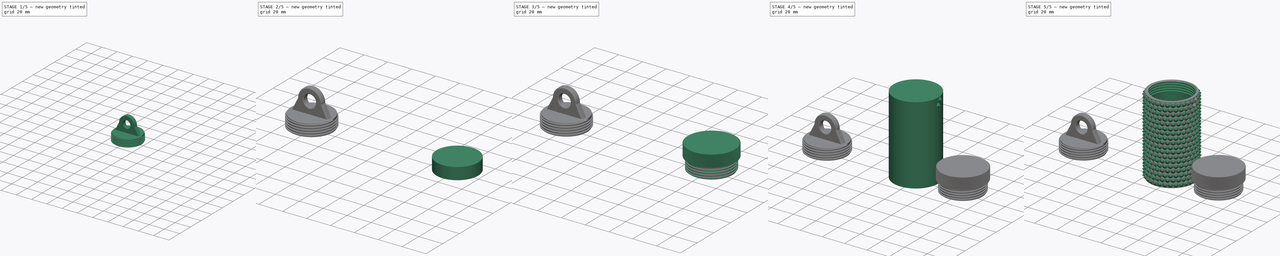
[diagram: build sequence overview — one tinted view per stage of 5, left to right]
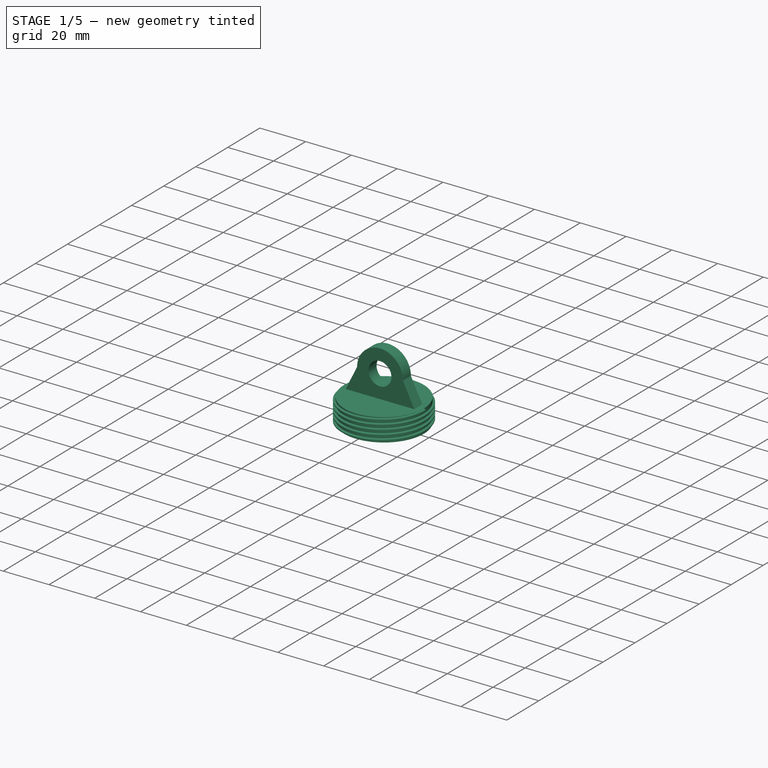
[diagram: stage 1 of 5 — iso view after this stage's code; geometry added in this stage tinted green]
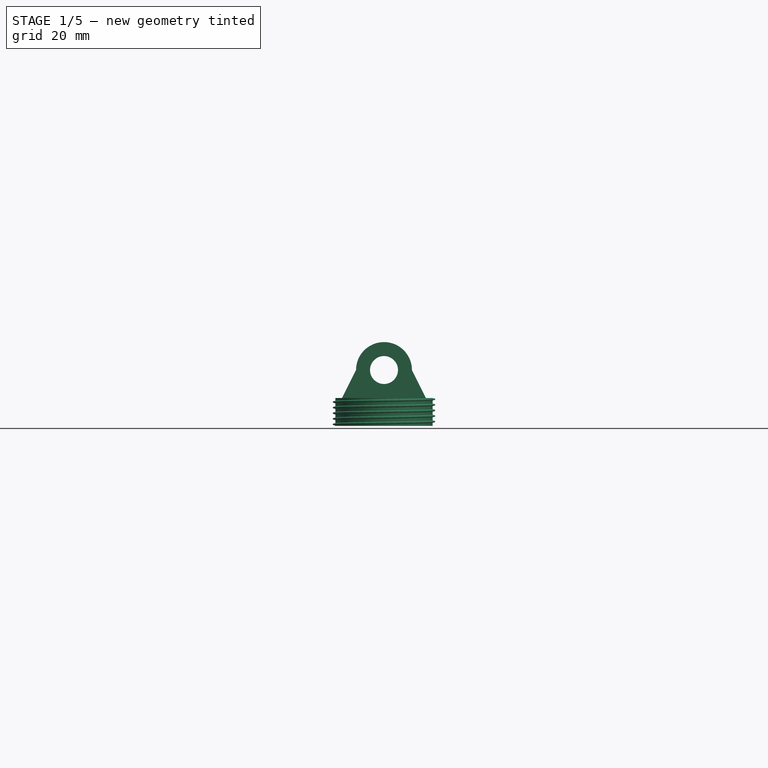
[diagram: stage 1 of 5 — front view after this stage's code; geometry added in this stage tinted green]
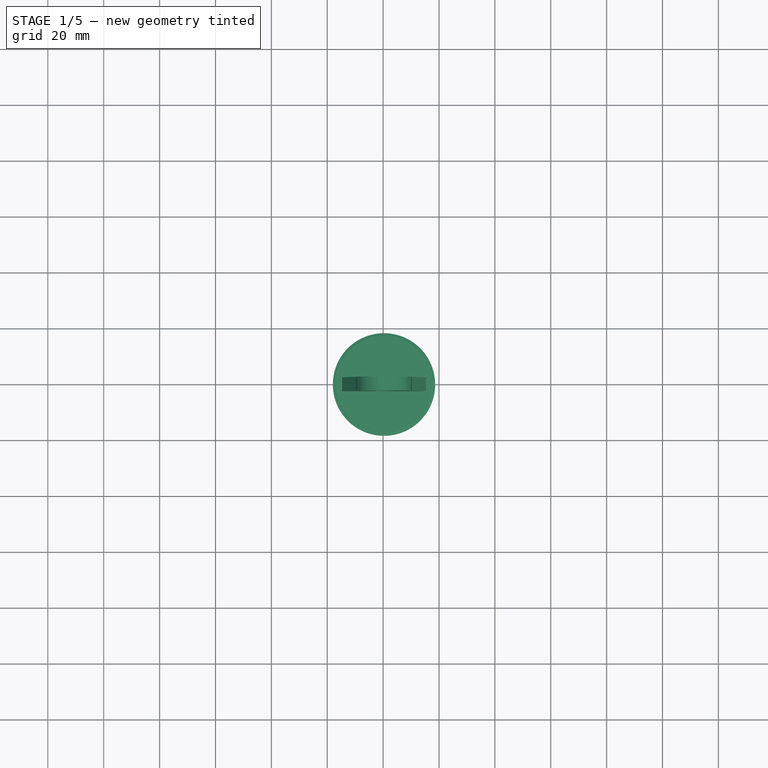
[diagram: stage 1 of 5 — top view after this stage's code; geometry added in this stage tinted green]
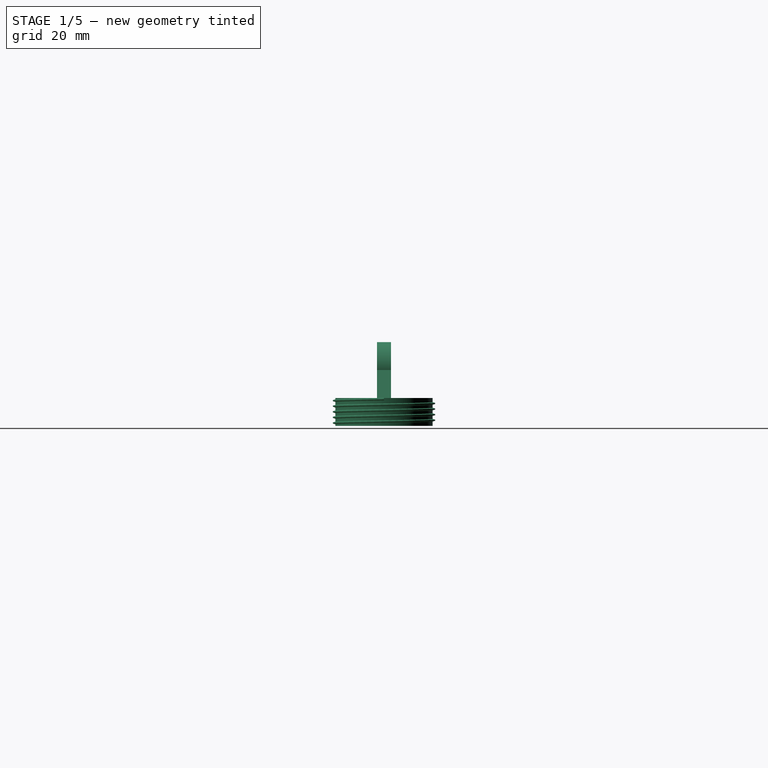
[diagram: stage 1 of 5 — right view after this stage's code; geometry added in this stage tinted green]
FCSTD DOCUMENT  (FreeCAD 1.0R)
Label: spikey roller
License: All rights reserved
LicenseURL: http://en.wikipedia.org/wiki/All_rights_reserved
objects: Sketcher::SketchObject×13, App::VarSet×5, PartDesign::Pad×5, PartDesign::Plane×5, PartDesign::Body×3, PartDesign::Revolution×2, PartDesign::PolarPattern×2, PartDesign::MultiTransform×2, PartDesign::Pocket×2, PartDesign::AdditiveHelix×2, PartDesign::Fillet×2, PartDesign::LinearPattern×1, PartDesign::SubtractiveHelix×1
note: 86 computed .brp shape members not serialized (recipe doc carries the construction recipe); baked Part::Feature solids carry a one-line shape summary decoded from their .brp

FEATURE [PartDesign::Body] Body001  label="lid variant 1"
  AllowCompound = false
  Group = -> [Sketch006,Pad001,DatumPlane003,Sketch007,AdditiveHelix,Sketch008,VarSet003,Pad002,Sketch009,Pocket001,MultiTransform001,PolarPattern001]
  Origin = -> Origin001
  Placement = pos=(20,0,0) rot=(0,0,1;0rad)
  Tip = -> MultiTransform001
FEATURE [Sketcher::SketchObject] Sketch010
  ArcFitTolerance = 1e-06
  AttachmentSupport = -> [XY_Plane002]
  FullyConstrained = false
  MakeInternals = false
  MapMode = 5
  expr: Constraints[1] = <<lid>>.bottom_width
  sketch-geometry (1):
    g0: Circle CenterX=-79.6834 CenterY=0 CenterZ=0 NormalX=0 NormalY=0 NormalZ=1 AngleXU=0 Radius=17.4
  constraints (2):
    c: PointOnObject(g0,g-1)
    c: Diameter(g0) = 34.8
FEATURE [PartDesign::Pad] Pad003
  Direction = (0,0,1)
  Length = 10
  Length2 = 10
  Profile = -> Sketch010
  ReferenceAxis = -> Sketch010 [N_Axis]
  Suppressed = false
  Type = 0
  expr: Length = <<thread>>.thread_length
FEATURE [PartDesign::Plane] DatumPlane004
  AttachmentOffset = pos=(0,0,0) rot=(1,0,0;1.5708rad)
  AttachmentSupport = -> [Pad003]
  Length = 139.421
  MapMode = 5
  Placement = pos=(0,0,10) rot=(1,0,0;1.5708rad)
  ResizeMode = 0
  Width = 71.365
FEATURE [Sketcher::SketchObject] Sketch011
  ArcFitTolerance = 1e-06
  AttachmentSupport = -> [DatumPlane004]
  ExternalGeometry = -> [Pad003]
  FullyConstrained = true
  MakeInternals = false
  MapMode = 5
  Placement = pos=(0,0,10) rot=(1,0,0;1.5708rad)
  expr: Constraints[10] = <<thread>>.depth - <<tolerance>>.thread_tolerance
  expr: Constraints[7] = <<thread>>.start_size - <<tolerance>>.thread_tolerance
  expr: Constraints[8] = <<thread>>.end_size - <<tolerance>>.thread_tolerance
  expr: Constraints[9] = (<<thread>>.start_size - <<thread>>.end_size) / 2
  sketch-geometry (4):
    g0: LineSegment StartX=-62.2834 StartY=0 StartZ=0 EndX=-62.2834 EndY=-0.9 EndZ=0
    g1: LineSegment StartX=-62.2834 StartY=-0.9 StartZ=0 EndX=-61.3834 EndY=-0.65 EndZ=0
    g2: LineSegment StartX=-61.3834 StartY=-0.65 StartZ=0 EndX=-61.3834 EndY=-0.25 EndZ=0
    g3: LineSegment StartX=-61.3834 StartY=-0.25 StartZ=0 EndX=-62.2834 EndY=0 EndZ=0
  constraints (11):
    c: Coincident(g0,g-4)
    c: PointOnObject(g0,g-3)
    c: Coincident(g1,g0)
    c: Coincident(g2,g1)
    c: Coincident(g3,g2)
    c: Coincident(g3,g0)
    c: Parallel(g2,g0)
    c: DistanceY(g0,g0) = 0.9
    c: DistanceY(g2,g2) = 0.4
    c: DistanceY(g2,g0) = 0.25
    c: DistanceX(g0,g2) = 0.9
FEATURE [PartDesign::AdditiveHelix] AdditiveHelix001
  Angle = 0
  Axis = (0,0,1)
  Base = (-79.6834,0,10)
  BaseFeature = -> Pad003
  Growth = 0
  HasBeenEdited = true
  Height = 9
  LeftHanded = false
  Mode = 0
  Outside = false
  Pitch = 2
  Profile = -> Sketch011
  ReferenceAxis = -> Pad003 [Edge3]
  Reversed = true
  Suppressed = false
  Tolerance = 0.1
  Turns = 4.5
  expr: Height = <<thread>>.thread_length - <<thread>>.start_size
  expr: Pitch = <<thread>>.pitch
FEATURE [Sketcher::SketchObject] Sketch012
  ArcFitTolerance = 1e-06
  AttachmentSupport = -> [DatumPlane004]
  ExternalGeometry = -> [AdditiveHelix001]
  FullyConstrained = true
  MakeInternals = false
  MapMode = 5
  Placement = pos=(0,0,10) rot=(1,0,0;1.5708rad)
  expr: Constraints[11] = <<hole>>.hole_base_size
  expr: Constraints[12] = <<hole>>.hole_base_size / 2
  expr: Constraints[13] = (<<lid>>.bottom_width - <<hole>>.hole_base_size) / 2
  expr: Constraints[3] = <<hole>>.hole_size
  expr: Constraints[4] = <<hole>>.thickness_around_hole
  expr: Constraints[6] = <<hole>>.hole_height
  expr: Constraints[7] = <<hole>>.hole_height
  sketch-geometry (5):
    g0: ArcOfCircle CenterX=-79.6834 CenterY=10 CenterZ=0 NormalX=0 NormalY=0 NormalZ=1 AngleXU=0 Radius=10 StartAngle=6.28319 EndAngle=9.42478
    g1: LineSegment StartX=-89.6834 StartY=10 StartZ=0 EndX=-94.6834 EndY=0 EndZ=0
    g2: Circle CenterX=-79.6834 CenterY=10 CenterZ=0 NormalX=0 NormalY=0 NormalZ=1 AngleXU=0 Radius=5
    g3: LineSegment StartX=-69.6834 StartY=10 StartZ=0 EndX=-64.6834 EndY=0 EndZ=0
    g4: LineSegment StartX=-94.6834 StartY=0 StartZ=0 EndX=-64.6834 EndY=0 EndZ=0
  constraints (15):
    c: Angle(g0) = 3.14159
    c: Coincident(g1,g0)
    c: Coincident(g2,g0)
    c: Diameter(g2) = 10
    c: Distance(g2,g0) = 5
    c: Coincident(g3,g0)
    c: DistanceY(g-3,g0) = 10
    c: DistanceY(g-3,g0) = 10
    c: Coincident(g4,g1)
    c: Coincident(g4,g3)
    c: Horizontal(g4)
    c: DistanceX(g4,g4) = 30
    c: DistanceX(g1,g0) = 15
    c: DistanceX(g-3,g1) = 2.4
    c: PointOnObject(g3,g-3)
FEATURE [App::VarSet] VarSet004  label="hole"
  hole_base_size = 30
  hole_fillet = 1
  hole_height = 10
  hole_size = 10
  hole_tab_fillet = 1
  hole_tab_thickness = 5
  thickness_around_hole = 5
FEATURE [PartDesign::Pad] Pad004
  BaseFeature = -> AdditiveHelix001
  Direction = (0,-1,2e-16)
  Length = 2.5
  Length2 = 2.5
  Profile = -> Sketch012
  ReferenceAxis = -> Sketch012 [N_Axis]
  Suppressed = false
  Type = 4
  expr: Length = <<hole>>.hole_tab_thickness / 2
  expr: Length2 = <<hole>>.hole_tab_thickness / 2
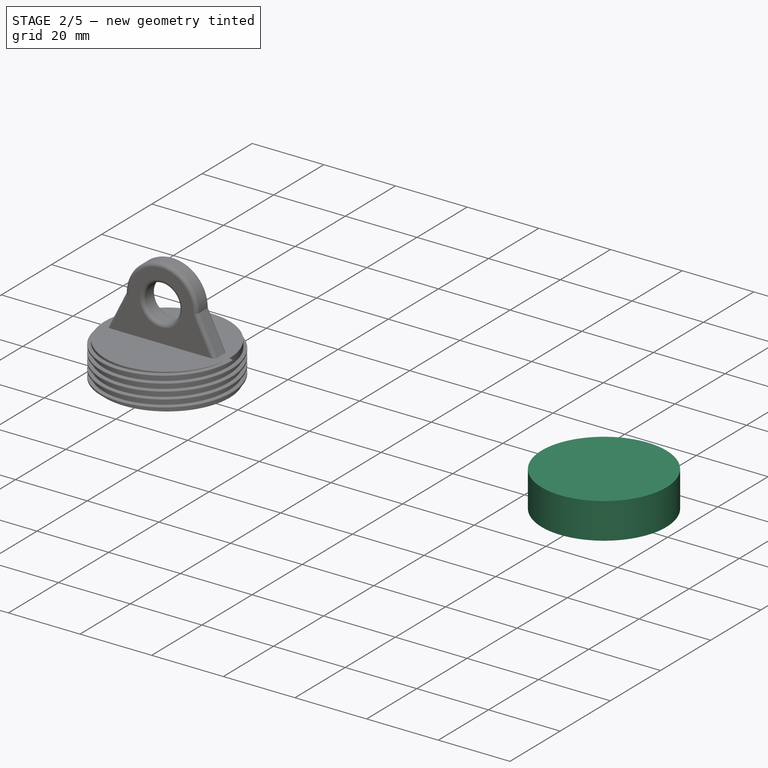
[diagram: stage 2 of 5 — iso view after this stage's code; geometry added in this stage tinted green]
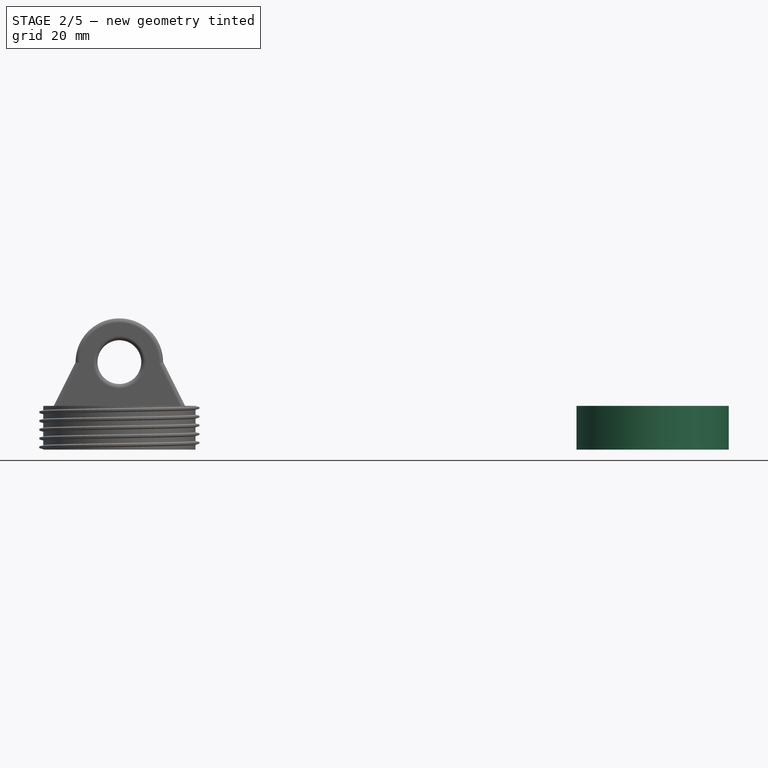
[diagram: stage 2 of 5 — front view after this stage's code; geometry added in this stage tinted green]
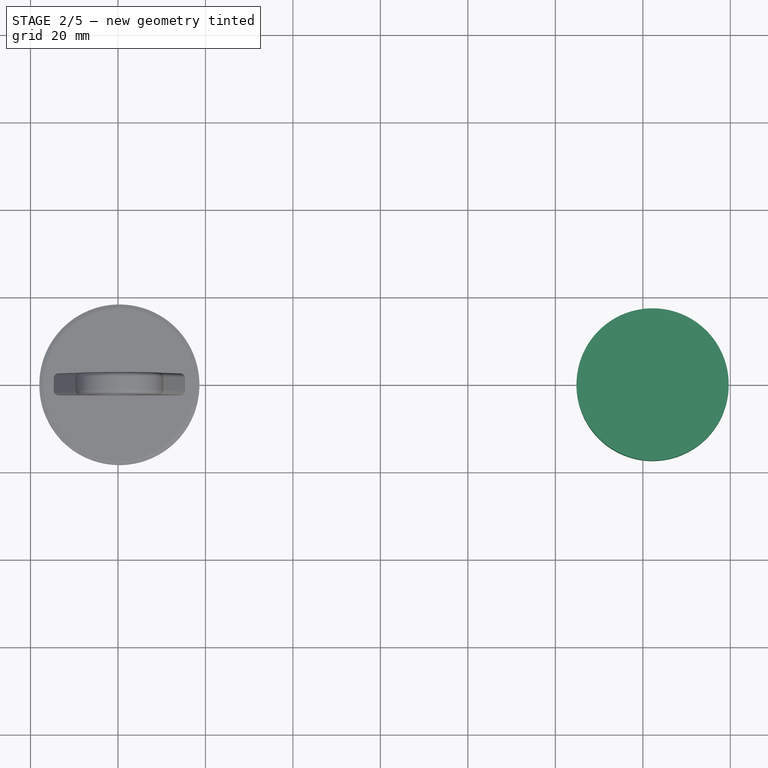
[diagram: stage 2 of 5 — top view after this stage's code; geometry added in this stage tinted green]
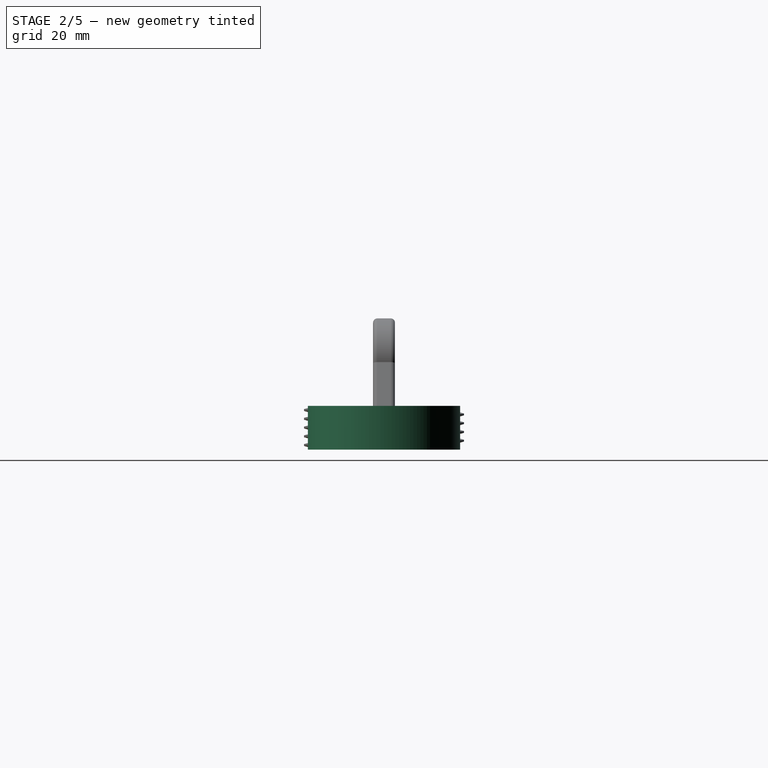
[diagram: stage 2 of 5 — right view after this stage's code; geometry added in this stage tinted green]
FEATURE [PartDesign::Body] Body
  AllowCompound = false
  Group = -> [VarSet,Sketch,Pad,DatumPlane,Sketch001,Revolution,DatumPlane001,Sketch002,Revolution001,MultiTransform,PolarPattern,LinearPattern,Sketch003,Sketch004,Pocket,DatumPlane002,Sketch005,SubtractiveHelix,VarSet001]
  Origin = -> Origin
  Tip = -> SubtractiveHelix
FEATURE [Sketcher::SketchObject] Sketch006
  ArcFitTolerance = 1e-06
  AttachmentSupport = -> [XY_Plane001]
  FullyConstrained = false
  MakeInternals = false
  MapMode = 5
  expr: Constraints[1] = <<lid>>.bottom_width
  sketch-geometry (1):
    g0: Circle CenterX=42.2275 CenterY=0 CenterZ=0 NormalX=0 NormalY=0 NormalZ=1 AngleXU=0 Radius=17.4
  constraints (2):
    c: PointOnObject(g0,g-1)
    c: Diameter(g0) = 34.8
FEATURE [App::VarSet] VarSet002  label="tolerance"
  thread_tolerance = 0.1
  tolerance = 0.2
FEATURE [PartDesign::Pad] Pad001
  Direction = (0,0,1)
  Length = 10
  Length2 = 10
  Profile = -> Sketch006 [Edge1]
  ReferenceAxis = -> Sketch006 [N_Axis]
  Suppressed = false
  Type = 0
  expr: Length = <<lid>>.bottom_depth
FEATURE [PartDesign::Fillet] Fillet
  Base = -> Pad004 [Edge57,Edge61]
  BaseFeature = -> Pad004
  Radius = 1
  Refine = true
  SupportTransform = false
  Suppressed = false
  UseAllEdges = false
  expr: Radius = <<hole>>.hole_fillet
FEATURE [PartDesign::Fillet] Fillet001
  Base = -> Fillet [Edge5,Edge2,Edge3,Edge10,Edge16,Edge12]
  BaseFeature = -> Fillet
  Radius = 1
  Refine = true
  SupportTransform = false
  Suppressed = false
  UseAllEdges = false
  expr: Radius = <<hole>>.hole_tab_fillet
FEATURE [PartDesign::Body] Body002  label="lid variant 2"
  AllowCompound = false
  Group = -> [Sketch010,Pad003,DatumPlane004,Sketch011,AdditiveHelix001,Sketch012,VarSet004,Pad004,Fillet,Fillet001]
  Origin = -> Origin002
  Placement = pos=(23,0,0) rot=(0,0,1;0rad)
  Tip = -> Fillet001
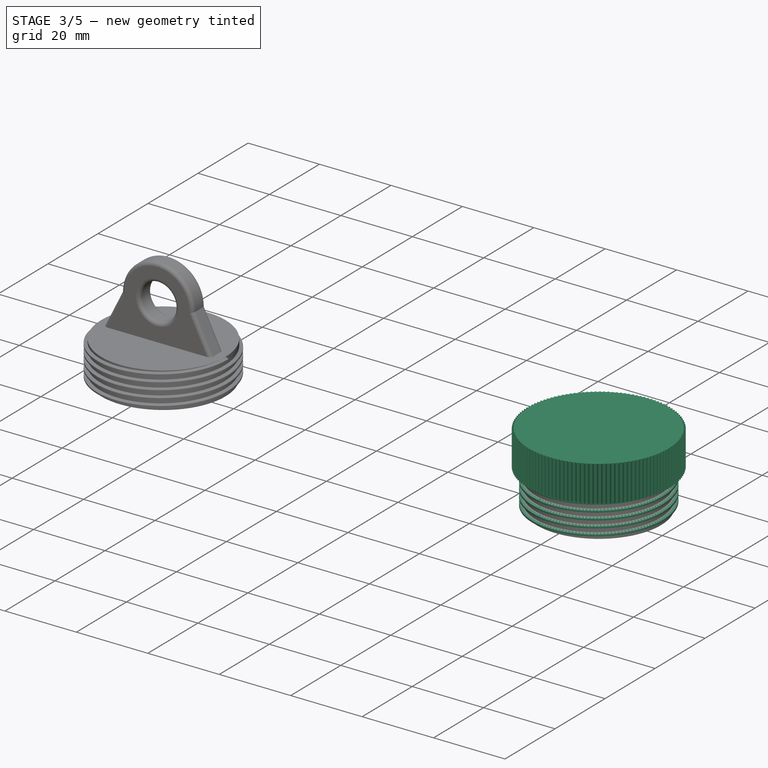
[diagram: stage 3 of 5 — iso view after this stage's code; geometry added in this stage tinted green]
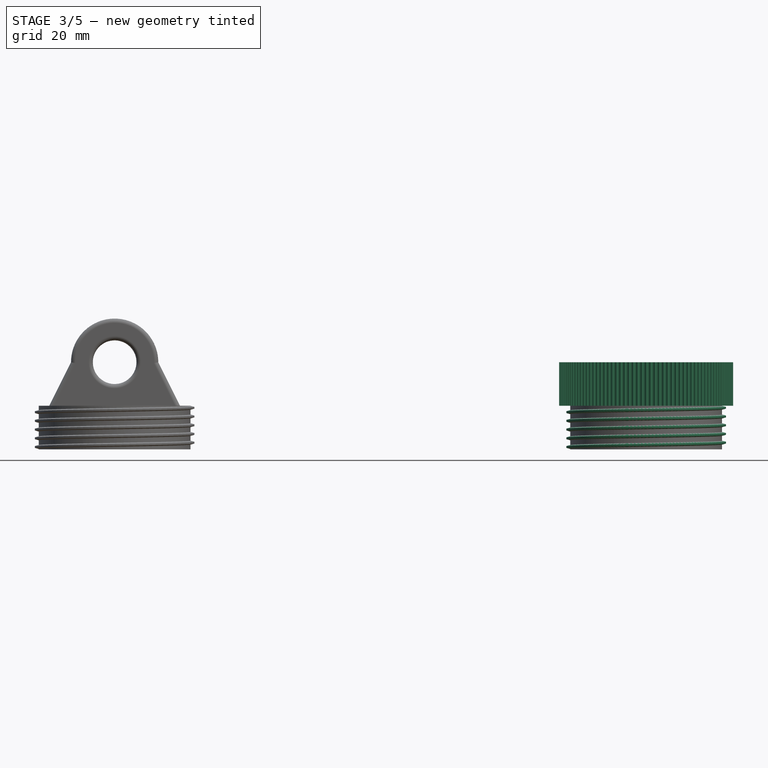
[diagram: stage 3 of 5 — front view after this stage's code; geometry added in this stage tinted green]
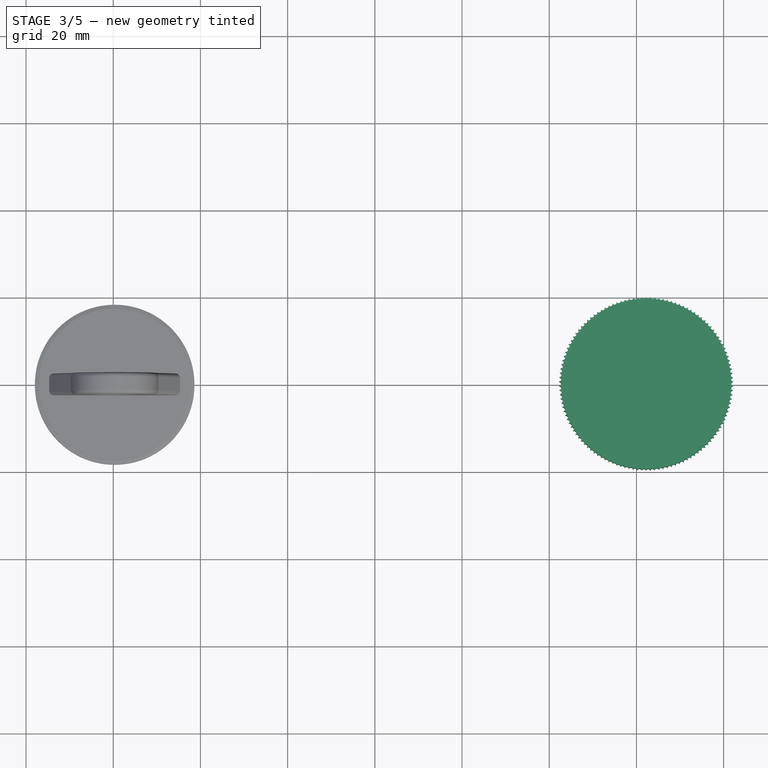
[diagram: stage 3 of 5 — top view after this stage's code; geometry added in this stage tinted green]
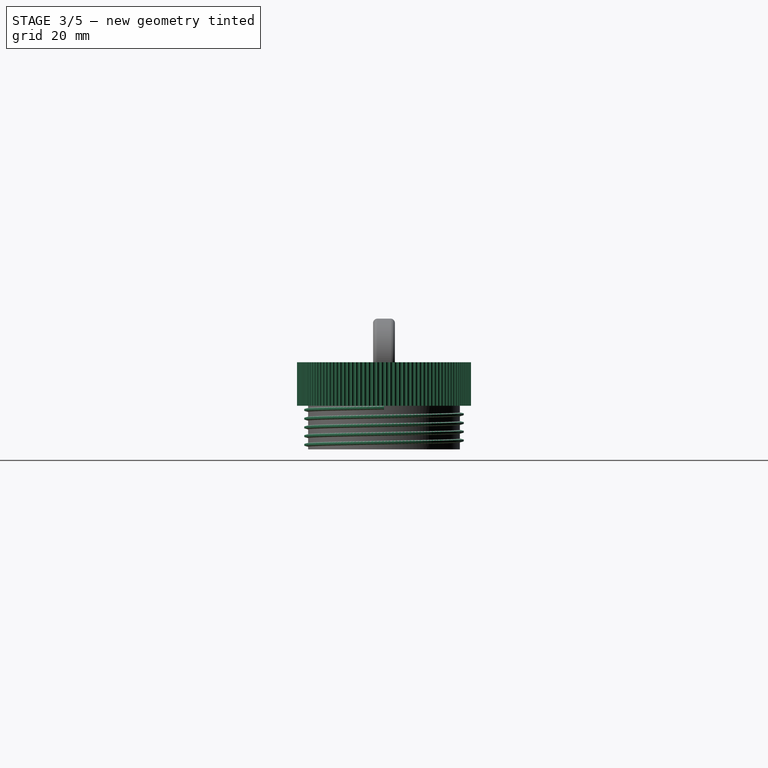
[diagram: stage 3 of 5 — right view after this stage's code; geometry added in this stage tinted green]
FEATURE [PartDesign::Plane] DatumPlane003
  AttachmentOffset = pos=(0,0,0) rot=(1,0,0;1.5708rad)
  AttachmentSupport = -> [Pad001]
  Length = 100.383
  MapMode = 5
  Placement = pos=(0,0,10) rot=(1,0,0;1.5708rad)
  ResizeMode = 0
  Width = 63.2044
FEATURE [Sketcher::SketchObject] Sketch007
  ArcFitTolerance = 1e-06
  AttachmentSupport = -> [DatumPlane003]
  ExternalGeometry = -> [Pad001]
  FullyConstrained = true
  MakeInternals = false
  MapMode = 5
  Placement = pos=(0,0,10) rot=(1,0,0;1.5708rad)
  expr: Constraints[10] = (<<thread>>.start_size - <<thread>>.end_size) / 2
  expr: Constraints[6] = <<thread>>.depth - <<tolerance>>.thread_tolerance
  expr: Constraints[8] = <<thread>>.end_size - <<tolerance>>.thread_tolerance
  expr: Constraints[9] = <<thread>>.start_size - <<tolerance>>.thread_tolerance
  sketch-geometry (4):
    g0: LineSegment StartX=59.6275 StartY=0 StartZ=0 EndX=60.5275 EndY=-0.25 EndZ=0
    g1: LineSegment StartX=60.5275 StartY=-0.25 StartZ=0 EndX=60.5275 EndY=-0.65 EndZ=0
    g2: LineSegment StartX=60.5275 StartY=-0.65 StartZ=0 EndX=59.6275 EndY=-0.9 EndZ=0
    g3: LineSegment StartX=59.6275 StartY=-0.9 StartZ=0 EndX=59.6275 EndY=0 EndZ=0
  constraints (11):
    c: Coincident(g0,g-4)
    c: Coincident(g1,g0)
    c: Coincident(g2,g1)
    c: PointOnObject(g2,g-4)
    c: Coincident(g3,g2)
    c: Coincident(g3,g0)
    c: DistanceX(g0,g0) = 0.9
    c: Parallel(g1,g3)
    c: DistanceY(g1,g1) = 0.4
    c: DistanceY(g3,g3) = 0.9
    c: DistanceY(g0,g0) = 0.25
FEATURE [PartDesign::AdditiveHelix] AdditiveHelix
  Angle = 0
  Axis = (0,0,1)
  Base = (42.2275,0,10)
  BaseFeature = -> Pad001
  Growth = 0
  HasBeenEdited = true
  Height = 9
  LeftHanded = false
  Mode = 0
  Outside = false
  Pitch = 2
  Profile = -> Sketch007
  ReferenceAxis = -> Pad001 [Edge3]
  Reversed = true
  Suppressed = false
  Tolerance = 0.1
  Turns = 4.5
  expr: Height = <<thread>>.thread_length - <<thread>>.start_size
  expr: Pitch = <<thread>>.pitch
FEATURE [Sketcher::SketchObject] Sketch008
  ArcFitTolerance = 1e-06
  AttachmentSupport = -> [AdditiveHelix]
  ExternalGeometry = -> [AdditiveHelix]
  FullyConstrained = true
  MakeInternals = false
  MapMode = 5
  Placement = pos=(0,0,10) rot=(0,0,1;0rad)
  expr: Constraints[1] = <<lid>>.top_width
  sketch-geometry (1):
    g0: Circle CenterX=42.2275 CenterY=0 CenterZ=0 NormalX=0 NormalY=0 NormalZ=1 AngleXU=0 Radius=20
  constraints (2):
    c: Coincident(g0,g-3)
    c: Diameter(g0) = 40
FEATURE [App::VarSet] VarSet003  label="lid"
  bottom_depth = 10
  bottom_width = 34.8
  grip_depth = 1
  grip_repeats = 125.664
  top_height = 10
  top_width = 40
  expr: bottom_depth = <<thread>>.thread_length
  expr: bottom_width = <<VarSet>>.center_width - <<VarSet>>.wall_thickness - <<tolerance>>.tolerance
  expr: grip_repeats = pi * top_width / grip_depth
  expr: top_width = <<VarSet>>.center_width
FEATURE [PartDesign::Pad] Pad002
  BaseFeature = -> AdditiveHelix
  Direction = (0,0,1)
  Length = 10
  Length2 = 10
  Profile = -> Sketch008
  ReferenceAxis = -> Sketch008 [N_Axis]
  Suppressed = false
  Type = 0
  expr: Length = <<lid>>.top_height
FEATURE [Sketcher::SketchObject] Sketch009
  ArcFitTolerance = 1e-06
  AttachmentSupport = -> [Pad002]
  ExternalGeometry = -> [Pad002]
  FullyConstrained = false
  MakeInternals = false
  MapMode = 5
  Placement = pos=(0,0,20) rot=(0,0,1;0rad)
  expr: Constraints[1] = <<lid>>.grip_depth
  sketch-geometry (1):
    g0: Circle CenterX=22.2275 CenterY=0.017724 CenterZ=0 NormalX=0 NormalY=0 NormalZ=1 AngleXU=0 Radius=0.5
  constraints (2):
    c: PointOnObject(g0,g-3)
    c: Diameter(g0) = 1
FEATURE [PartDesign::Pocket] Pocket001
  BaseFeature = -> Pad002
  Direction = (0,0,-1)
  Length = 10
  Length2 = 5
  Profile = -> Sketch009 [Edge1]
  ReferenceAxis = -> Sketch009 [N_Axis]
  Suppressed = false
  Type = 0
  expr: Length = <<lid>>.top_height
FEATURE [PartDesign::PolarPattern] PolarPattern001
  Angle = 360
  Axis = -> Pocket001 [Edge59]
  Mode = 0
  Occurrences = 126
  Offset = 120
  Suppressed = false
  TransformMode = 0
  expr: Occurrences = <<lid>>.grip_repeats
FEATURE [PartDesign::MultiTransform] MultiTransform001
  BaseFeature = -> Pocket001
  Originals = -> [Pocket001]
  Suppressed = false
  TransformMode = 0
  Transformations = -> [PolarPattern001]
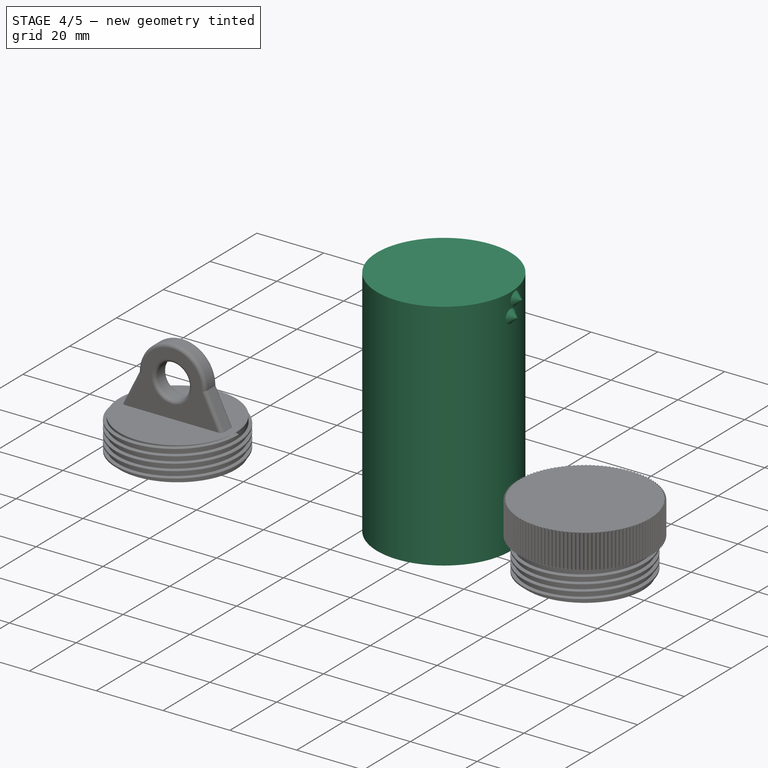
[diagram: stage 4 of 5 — iso view after this stage's code; geometry added in this stage tinted green]
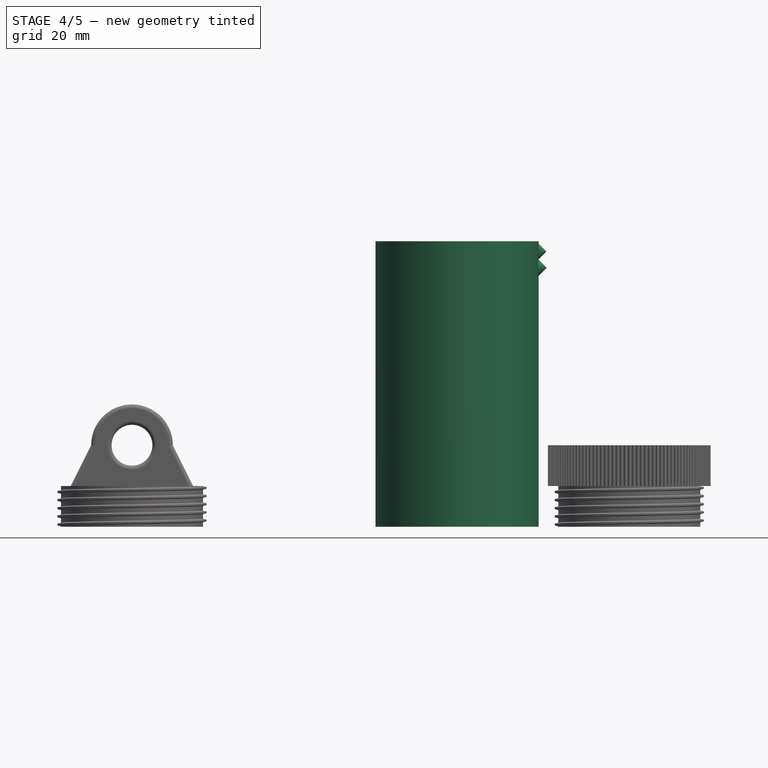
[diagram: stage 4 of 5 — front view after this stage's code; geometry added in this stage tinted green]
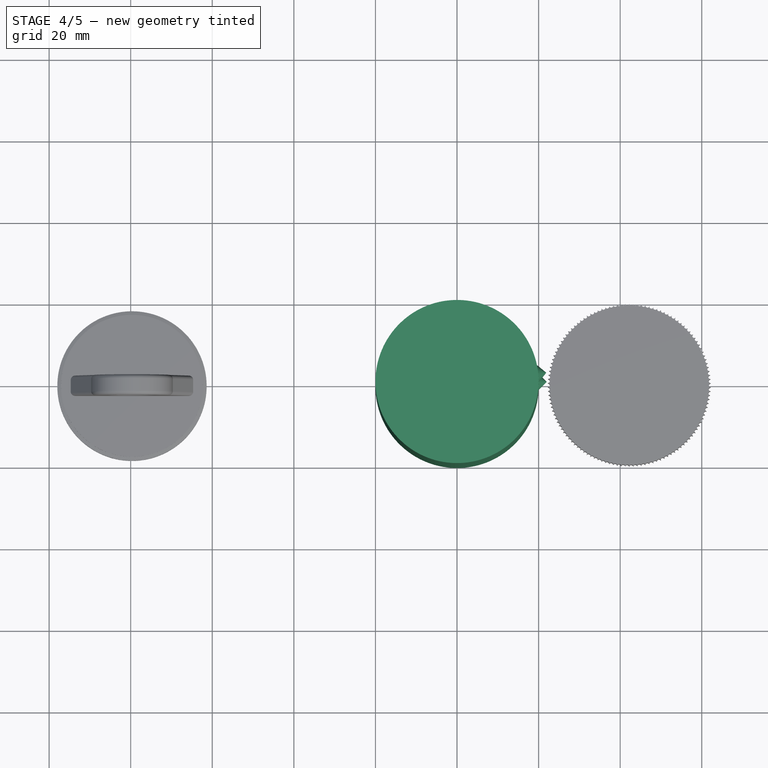
[diagram: stage 4 of 5 — top view after this stage's code; geometry added in this stage tinted green]
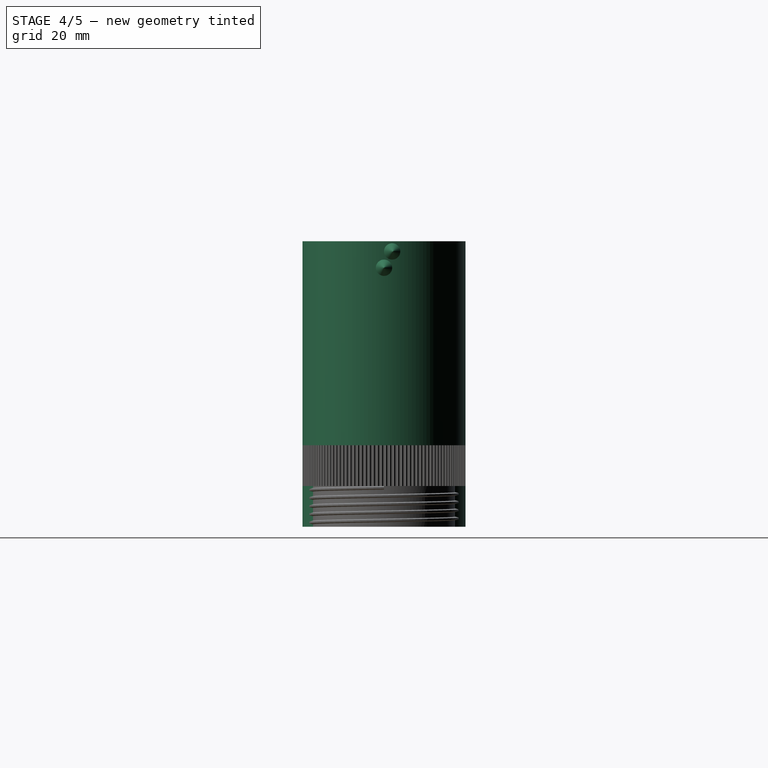
[diagram: stage 4 of 5 — right view after this stage's code; geometry added in this stage tinted green]
FEATURE [App::VarSet] VarSet
  center_width = 40
  height = 70
  pattern_size = 61
  spike_base = 4
  spike_circle_amount = 31.4159
  spike_depth = 0.5
  spike_length = 2
  spike_pattern_amount = 15.25
  spike_top_gap = 0.5
  wall_thickness = 5
  expr: pattern_size = height - spike_base * 2 - spike_top_gap * 2
  expr: spike_circle_amount = pi * center_width / spike_base
  expr: spike_pattern_amount = pattern_size / spike_base
FEATURE [Sketcher::SketchObject] Sketch
  ArcFitTolerance = 1e-06
  AttachmentSupport = -> [XY_Plane]
  FullyConstrained = true
  MakeInternals = false
  MapMode = 5
  expr: Constraints[1] = VarSet.center_width
  sketch-geometry (1):
    g0: Circle CenterX=0 CenterY=0 CenterZ=0 NormalX=0 NormalY=0 NormalZ=1 AngleXU=0 Radius=20
  constraints (2):
    c: Coincident(g0,g-1)
    c: Diameter(g0) = 40
FEATURE [PartDesign::Pad] Pad
  Direction = (0,0,1)
  Length = 70
  Length2 = 10
  Profile = -> Sketch
  ReferenceAxis = -> Sketch [N_Axis]
  Suppressed = false
  Type = 0
  expr: Length = VarSet.height
FEATURE [PartDesign::Plane] DatumPlane
  AttachmentOffset = pos=(0,0,0) rot=(0.997505,0.049917,0.049917;1.57329rad)
  AttachmentSupport = -> [Pad]
  Length = 69.1647
  MapMode = 5
  Placement = pos=(0,0,70) rot=(0.997505,0.049917,0.049917;1.57329rad)
  ResizeMode = 0
  Width = 109.423
  expr: .AttachmentOffset.Rotation.Yaw = 180 / VarSet.spike_circle_amount
FEATURE [Sketcher::SketchObject] Sketch001
  ArcFitTolerance = 1e-06
  AttachmentSupport = -> [DatumPlane]
  ExternalGeometry = -> [Pad]
  FullyConstrained = true
  MakeInternals = false
  MapMode = 5
  Placement = pos=(0,0,70) rot=(0.997505,0.049917,0.049917;1.57329rad)
  expr: Constraints[11] = VarSet.spike_top_gap
  expr: Constraints[13] = VarSet.spike_base / 2
  expr: Constraints[14] = VarSet.spike_length
  expr: Constraints[5] = VarSet.center_width / 2
  expr: Constraints[6] = VarSet.spike_length
  expr: Constraints[7] = VarSet.spike_base / 2
  sketch-geometry (5):
    g0: LineSegment StartX=20 StartY=-0.5 StartZ=0 EndX=22 EndY=-2.5 EndZ=0
    g1: LineSegment StartX=20 StartY=-0.5 StartZ=0 EndX=19.5 EndY=-0.5 EndZ=0
    g2: LineSegment StartX=19.5 StartY=-0.5 StartZ=0 EndX=19.5 EndY=-2.5 EndZ=0
    g3: LineSegment StartX=20 StartY=-2.5 StartZ=0 EndX=22 EndY=-2.5 EndZ=0
    g4: LineSegment StartX=19.5 StartY=-2.5 StartZ=0 EndX=20 EndY=-2.5 EndZ=0
  constraints (15):
    c: Coincident(g1,g2)
    c: Horizontal(g1)
    c: Vertical(g2)
    c: Coincident(g1,g0)
    c: DistanceX(g1,g1) = 0.5
    c: DistanceX(g-1,g0) = 20
    c: DistanceX(g0,g0) = 2
    c: DistanceY(g2,g2) = 2
    c: Coincident(g4,g2)
    c: Coincident(g4,g3)
    c: Horizontal(g4)
    c: DistanceY(g0,g-3) = 0.5
    c: Coincident(g3,g0)
    c: DistanceY(g0,g0) = 2
    c: DistanceX(g3,g3) = 2
FEATURE [PartDesign::Revolution] Revolution
  Angle = 360
  Angle2 = 60
  Axis = (0.995004,0.0998334,0)
  Base = (19.9001,1.99667,67.5)
  BaseFeature = -> Pad
  Profile = -> Sketch001
  ReferenceAxis = -> Sketch001 [Edge2]
  Reversed = true
  Suppressed = false
  Type = 0
FEATURE [PartDesign::Plane] DatumPlane001
  AttachmentOffset = pos=(0,0,0) rot=(1,0,0;1.5708rad)
  Length = 63.784
  MapMode = 5
  Placement = pos=(0,0,70) rot=(1,0,0;1.5708rad)
  ResizeMode = 0
  Width = 108.784
FEATURE [Sketcher::SketchObject] Sketch002
  ArcFitTolerance = 1e-06
  AttachmentSupport = -> [DatumPlane001]
  ExternalGeometry = -> [Revolution]
  FullyConstrained = true
  MakeInternals = false
  MapMode = 5
  Placement = pos=(0,0,70) rot=(1,0,0;1.5708rad)
  expr: Constraints[10] = VarSet.spike_base / 2
  expr: Constraints[11] = VarSet.spike_base + VarSet.spike_top_gap
  expr: Constraints[12] = VarSet.center_width / 2
  expr: Constraints[8] = VarSet.spike_length
  expr: Constraints[9] = VarSet.spike_base / 2
  sketch-geometry (5):
    g0: LineSegment StartX=20 StartY=-4.5 StartZ=0 EndX=22 EndY=-6.5 EndZ=0
    g1: LineSegment StartX=22 StartY=-6.5 StartZ=0 EndX=19 EndY=-6.5 EndZ=0
    g2: LineSegment StartX=20 StartY=-4.5 StartZ=0 EndX=19.5 EndY=-4.5 EndZ=0
    g3: LineSegment StartX=19.5 StartY=-4.5 StartZ=0 EndX=19.5 EndY=-6.5 EndZ=0
    g4: LineSegment StartX=19.5 StartY=-6.5 StartZ=0 EndX=19 EndY=-6.5 EndZ=0
  constraints (15):
    c: Coincident(g1,g0)
    c: Coincident(g2,g3)
    c: Coincident(g3,g4)
    c: Horizontal(g2)
    c: Horizontal(g4)
    c: Vertical(g3)
    c: Coincident(g2,g0)
    c: Coincident(g1,g4)
    c: DistanceX(g0,g0) = 2
    c: DistanceY(g1,g0) = 2
    c: DistanceY(g0,g0) = 2
    c: DistanceY(g0,g-4) = 4.5
    c: DistanceX(g-1,g0) = 20
    c: DistanceX(g2,g2) = 0.5
    c: Equal(g2,g4)
FEATURE [PartDesign::Revolution] Revolution001
  Angle = 360
  Angle2 = 60
  Axis = (-1,0,0)
  Base = (22,-1.4e-15,63.5)
  BaseFeature = -> Revolution
  Profile = -> Sketch002
  ReferenceAxis = -> Sketch002 [Edge2]
  Reversed = true
  Suppressed = false
  Type = 0
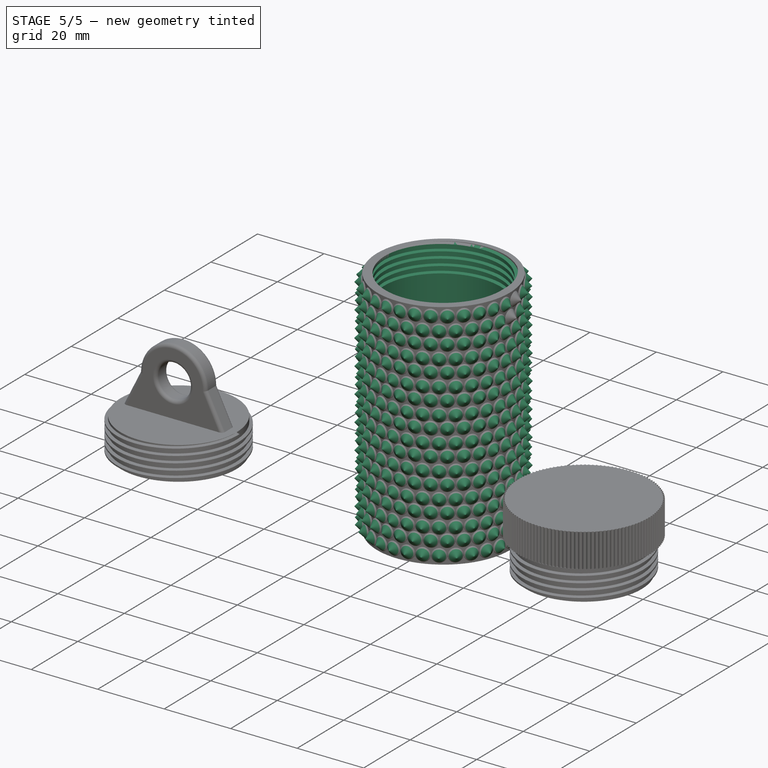
[diagram: stage 5 of 5 — iso view after this stage's code; geometry added in this stage tinted green]
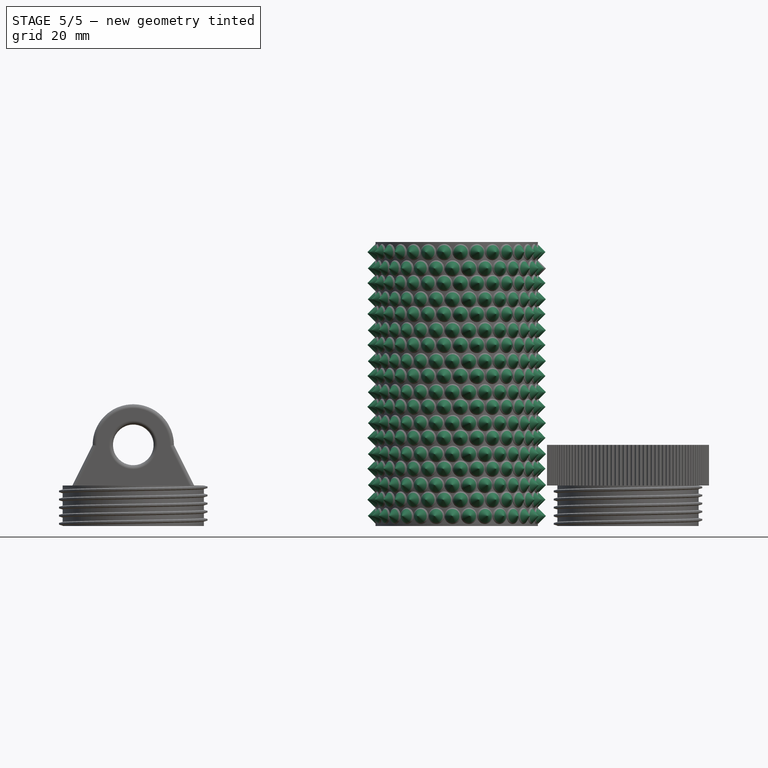
[diagram: stage 5 of 5 — front view after this stage's code; geometry added in this stage tinted green]
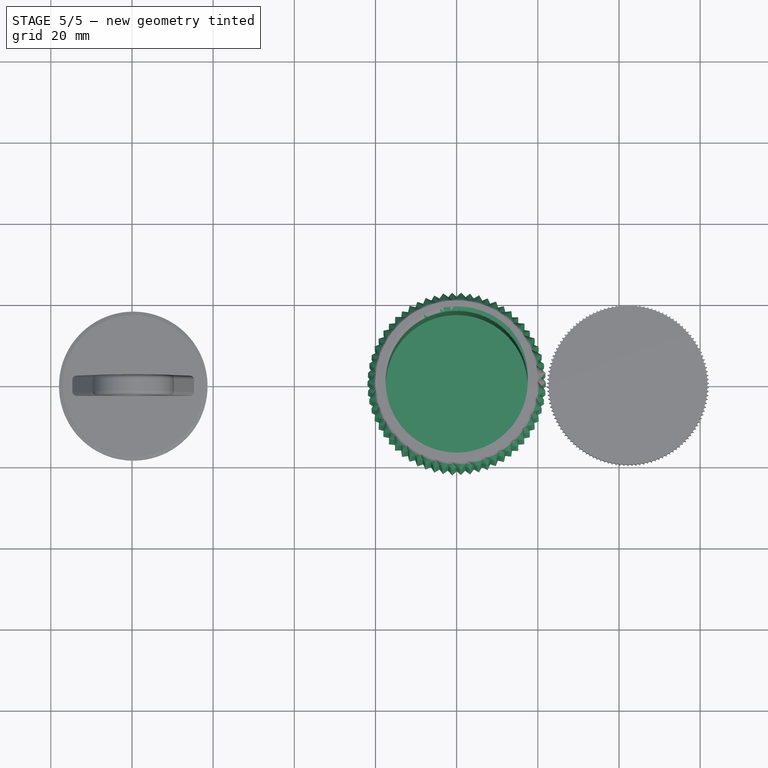
[diagram: stage 5 of 5 — top view after this stage's code; geometry added in this stage tinted green]
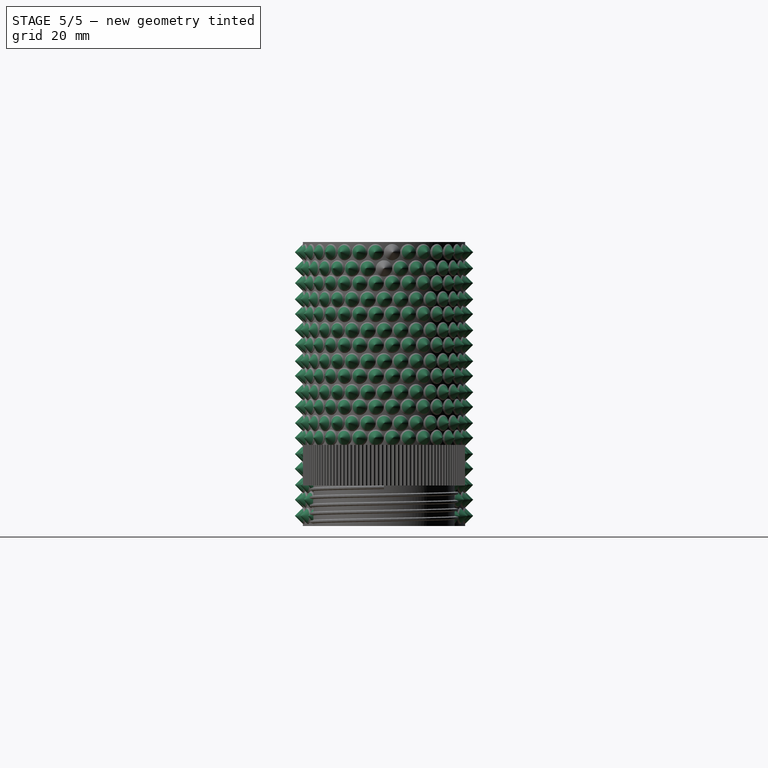
[diagram: stage 5 of 5 — right view after this stage's code; geometry added in this stage tinted green]
FEATURE [PartDesign::PolarPattern] PolarPattern
  Angle = 360
  Axis = -> Revolution001 [Edge11]
  Mode = 0
  Occurrences = 31
  Offset = 120
  Suppressed = false
  TransformMode = 0
  expr: Occurrences = VarSet.spike_circle_amount
FEATURE [PartDesign::LinearPattern] LinearPattern
  Direction = -> Revolution001 [Edge10]
  Length = 61
  Mode = 0
  Occurrences = 9
  Offset = 7.625
  Reversed = true
  Suppressed = false
  TransformMode = 0
  expr: Length = VarSet.pattern_size
  expr: Occurrences = VarSet.spike_pattern_amount / 2 + 1
FEATURE [PartDesign::MultiTransform] MultiTransform
  BaseFeature = -> Revolution001
  Originals = -> [Revolution,Revolution001]
  Suppressed = false
  TransformMode = 0
  Transformations = -> [PolarPattern,LinearPattern]
FEATURE [Sketcher::SketchObject] Sketch003
  ArcFitTolerance = 1e-06
  AttachmentSupport = -> [MultiTransform]
  FullyConstrained = true
  MakeInternals = false
  MapMode = 5
  Placement = pos=(0,0,70) rot=(0,0,1;0rad)
FEATURE [Sketcher::SketchObject] Sketch004
  ArcFitTolerance = 1e-06
  AttachmentSupport = -> [MultiTransform]
  FullyConstrained = true
  MakeInternals = false
  MapMode = 5
  Placement = pos=(0,0,70) rot=(0,0,1;0rad)
  expr: Constraints[1] = VarSet.center_width - VarSet.wall_thickness
  sketch-geometry (1):
    g0: Circle CenterX=0 CenterY=0 CenterZ=0 NormalX=0 NormalY=0 NormalZ=1 AngleXU=0 Radius=17.5
  constraints (2):
    c: Coincident(g0,g-1)
    c: Diameter(g0) = 35
FEATURE [PartDesign::Pocket] Pocket
  BaseFeature = -> MultiTransform
  Direction = (0,0,-1)
  Length = 65
  Length2 = 5
  Profile = -> Sketch004
  ReferenceAxis = -> Sketch004 [N_Axis]
  Suppressed = false
  Type = 0
  expr: Length = VarSet.height - VarSet.wall_thickness
FEATURE [App::VarSet] VarSet001  label="thread"
  depth = 1
  end_size = 0.5
  pitch = 2
  start_size = 1
  thread_length = 10
FEATURE [PartDesign::Plane] DatumPlane002
  AttachmentOffset = pos=(0,0,0) rot=(1,0,0;1.5708rad)
  AttachmentSupport = -> [Pocket]
  Length = 63.784
  MapMode = 5
  Placement = pos=(0,0,70) rot=(1,0,0;1.5708rad)
  ResizeMode = 0
  Width = 108.784
FEATURE [Sketcher::SketchObject] Sketch005
  ArcFitTolerance = 1e-06
  AttachmentSupport = -> [DatumPlane002]
  ExternalGeometry = -> [Pocket]
  FullyConstrained = true
  MakeInternals = false
  MapMode = 5
  Placement = pos=(0,0,70) rot=(1,0,0;1.5708rad)
  expr: Constraints[11] = VarSet.center_width / 2 - VarSet.wall_thickness / 2
  expr: Constraints[5] = <<thread>>.start_size
  expr: Constraints[6] = <<thread>>.end_size
  expr: Constraints[7] = <<thread>>.depth
  expr: Constraints[8] = (<<thread>>.start_size - <<thread>>.end_size) / 2
  sketch-geometry (4):
    g0: LineSegment StartX=-17.5 StartY=0 StartZ=0 EndX=-17.5 EndY=1 EndZ=0
    g1: LineSegment StartX=-17.5 StartY=0 StartZ=0 EndX=-18.5 EndY=0.25 EndZ=0
    g2: LineSegment StartX=-18.5 StartY=0.25 StartZ=0 EndX=-18.5 EndY=0.75 EndZ=0
    g3: LineSegment StartX=-18.5 StartY=0.75 StartZ=0 EndX=-17.5 EndY=1 EndZ=0
  constraints (12):
    c: PointOnObject(g0,g-3)
    c: Coincident(g1,g0)
    c: Coincident(g2,g1)
    c: Coincident(g3,g2)
    c: Coincident(g3,g0)
    c: DistanceY(g0,g0) = 1
    c: DistanceY(g2,g2) = 0.5
    c: DistanceX(g2,g0) = 1
    c: DistanceY(g2,g0) = 0.25
    c: Parallel(g0,g-2)
    c: Parallel(g2,g0)
    c: Distance(g0,g-2) = 17.5
FEATURE [PartDesign::SubtractiveHelix] SubtractiveHelix
  Angle = 0
  Axis = (0,2e-16,1)
  Base = (0,0,70)
  BaseFeature = -> Pocket
  Growth = 0
  HasBeenEdited = true
  Height = 10
  LeftHanded = false
  Mode = 0
  Outside = false
  Pitch = 2
  Profile = -> Sketch005
  ReferenceAxis = -> Sketch005 [V_Axis]
  Reversed = true
  Suppressed = false
  Tolerance = 0.1
  Turns = 5
  expr: Height = <<thread>>.thread_length
  expr: Pitch = <<thread>>.pitch
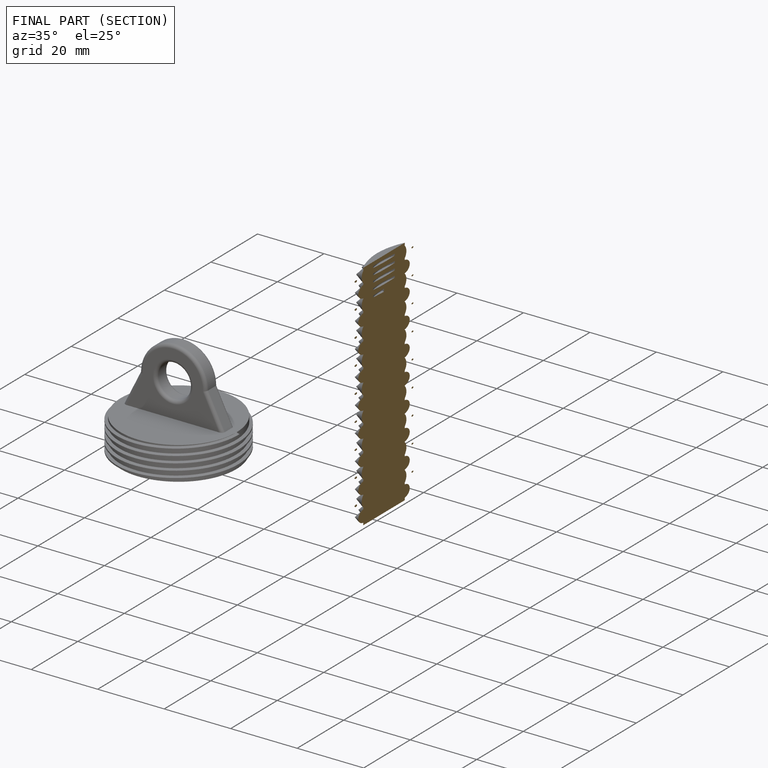
[diagram: finished part — half-section view (interior)]
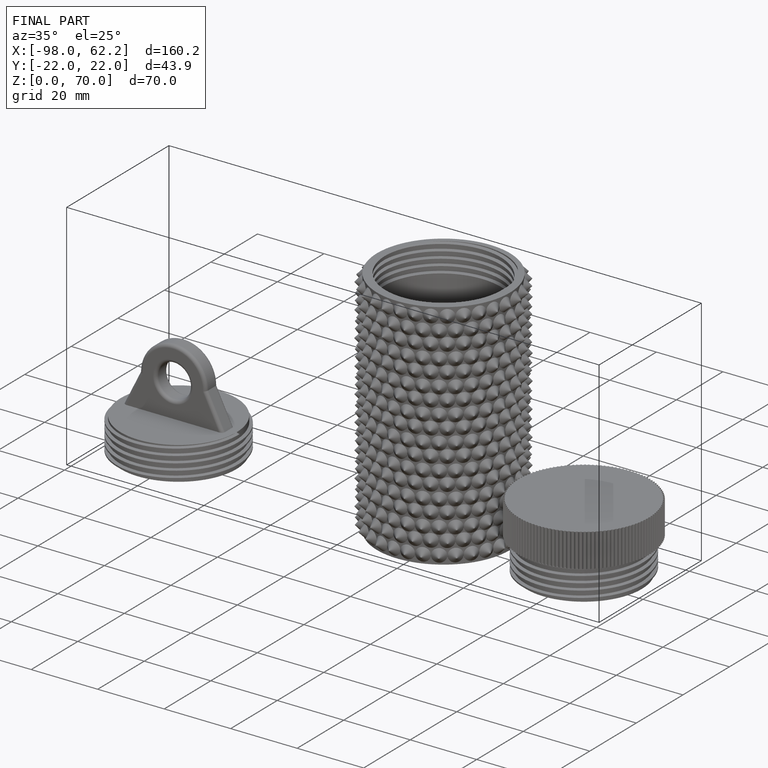
[diagram: finished part — iso view with bounding-box wireframe]
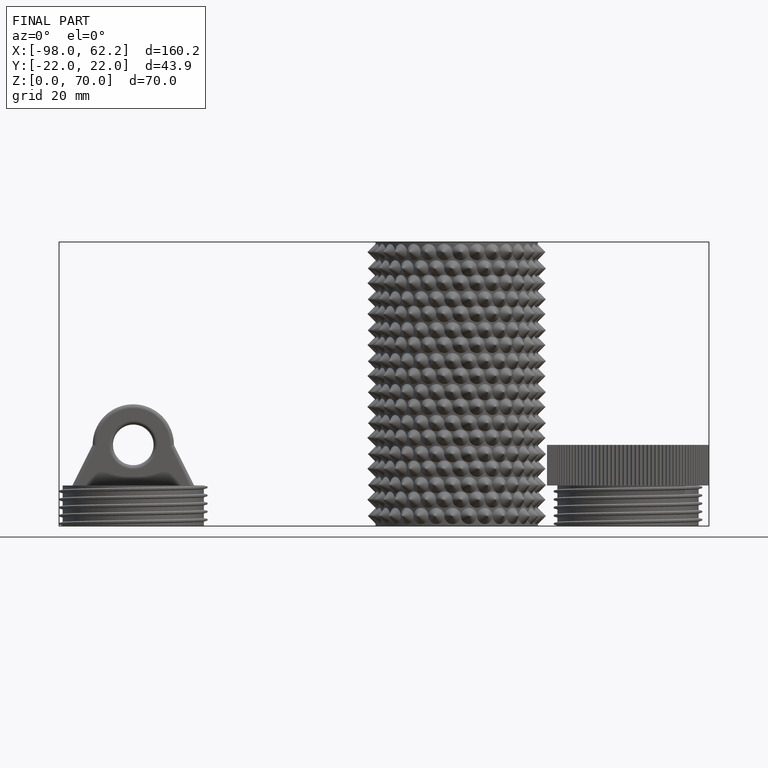
[diagram: finished part — front view with bounding-box wireframe]
